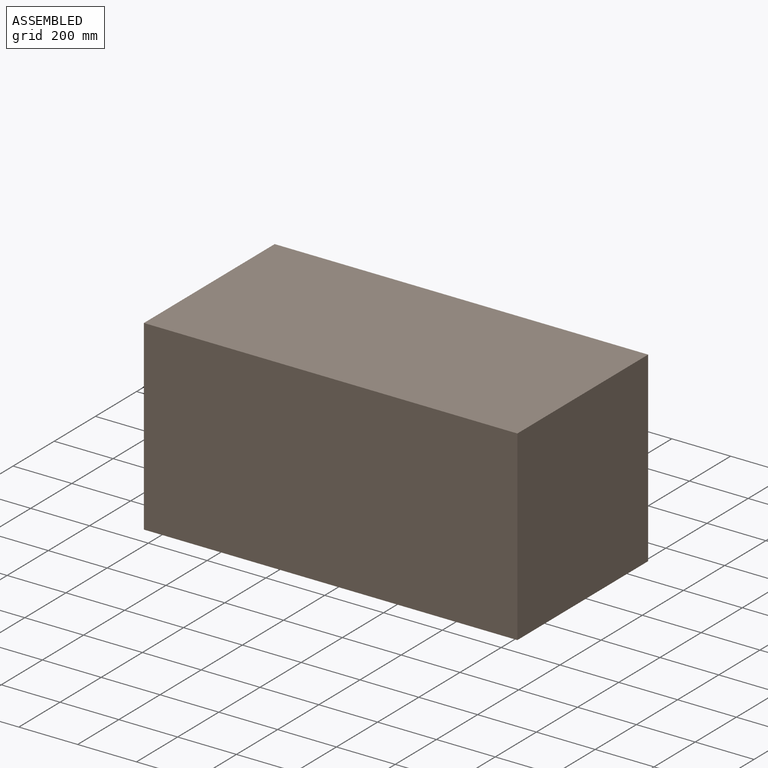
[diagram: assembled view]
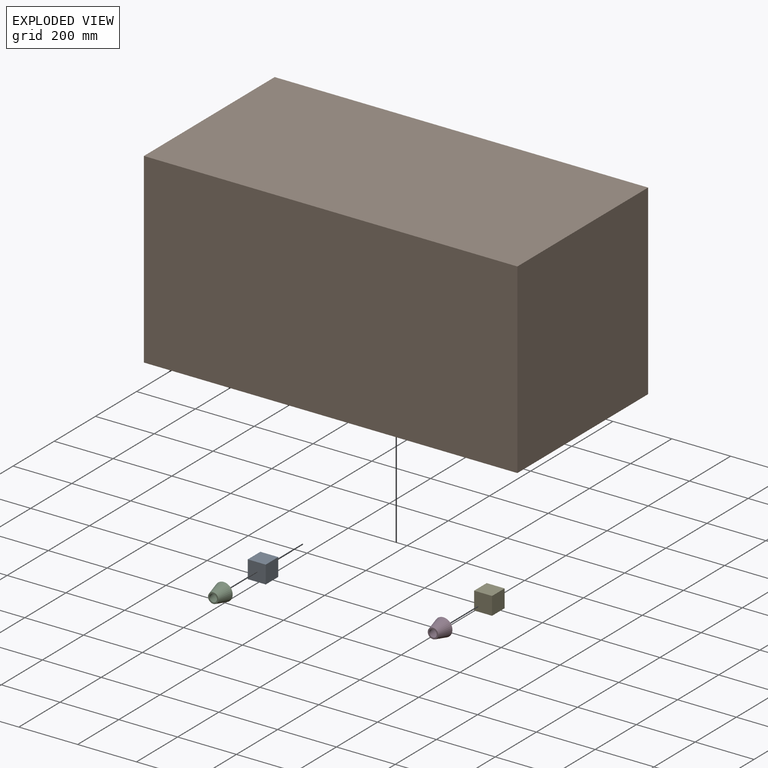
[diagram: exploded view]
GUIDED TOUR — MATED ASSEMBLY (Onshape document 1f2822065768705723c1a2fb, AutoMate assembly 1f2822065768705723c1a2fb_783183ebedd22d866a828e93_8a9afe2ca7e9c026642b0d51_default)

This assembly has 5 components, labeled P0..P4 below (a component is one placed occurrence of a part; the same part can appear more than once), held together by 4 mates. A mate is a constraint between two components; its type names the relative motion it leaves free:
  CYLINDRICAL — leaves both rotation about and translation along the listed axis free,
  PLANAR — leaves sliding in the plane through the listed point (normal = the listed direction) and rotation about that normal free.
Axis/direction vectors are unit vectors and 'through' points are millimeter coordinates, both in the assembly's world frame.

MATES
  1. CYLINDRICAL "Cylindrical 2": P2 <-> P0, axis (0.000, 1.000, 0.000) through (-776.44, -285.53, -358.49) mm
  2. PLANAR "Planar 1": P4 <-> P1, direction (0.000, 0.000, 1.000) through (-141.44, -255.05, -328.01) mm
  3. PLANAR "Planar 2": P0 <-> P1, direction (0.000, 0.000, 1.000) through (-776.44, -255.05, -328.01) mm
  4. CYLINDRICAL "Cylindrical 1": P3 <-> P4, axis (0.000, 1.000, 0.000) through (-141.44, -285.53, -358.49) mm

ASSEMBLY ORDER
  1. P4 — the base component [order verified]
  2. P3 [order verified]
  3. P0 [order verified]
  4. P2 [order verified]
  5. P1 [order verified]
Order-tag legend:
  [order verified] — this step's position reverses a verified removal order: the component was checked to insert without passing through the ones already placed.

Of the 5 components, 5 carry the full construction recipe — the FeatureScript program that regenerates the part's solid from scratch; the rest are supplied as boundary geometry only.
Each toured component is shown spotlighted twice — in the assembled view, then in the exploded view, where a leader line traces a displaced component back to its assembled socket (saturated green if recipe-attached, orange if geometry-only; every other component desaturated gray) — followed by its recipe or geometry summary and the mates that hold it.
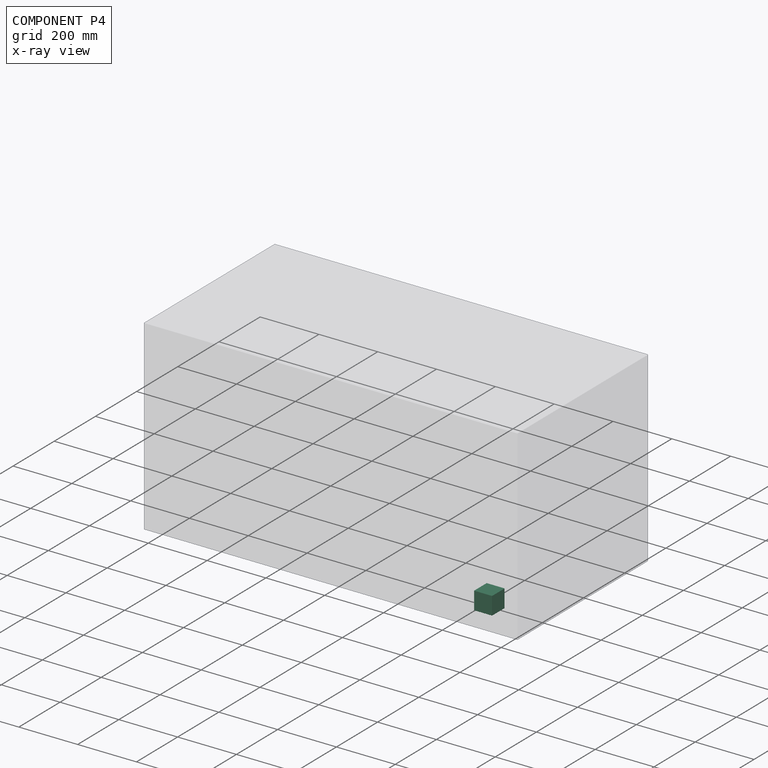
[diagram: component P4 — x-ray view]
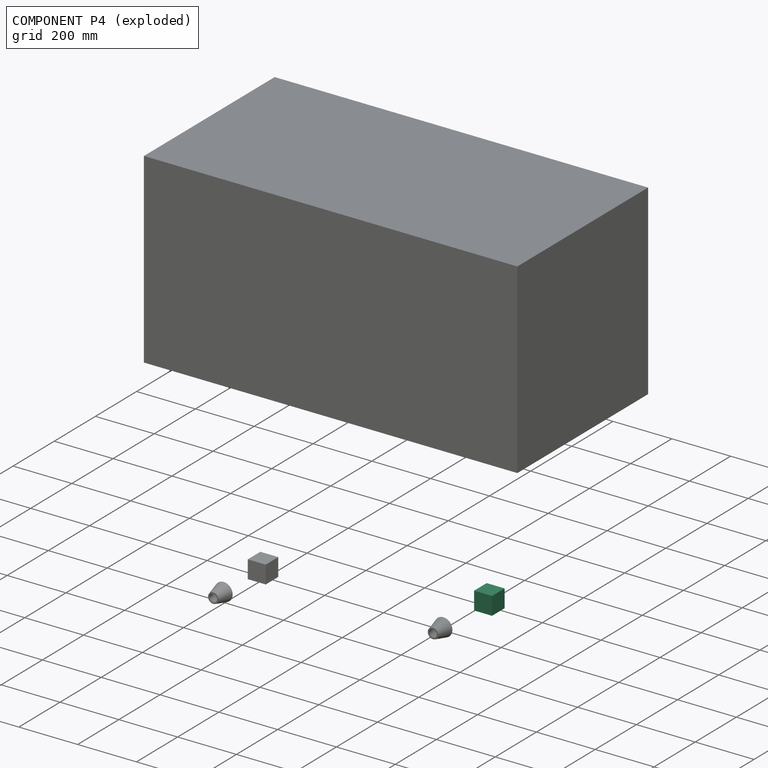
[diagram: component P4 — exploded]
COMPONENT P4 — same part as P0 (CADFS 00249501); its construction recipe is shown at P0.
Held by: PLANAR mate "Planar 1" to P1; CYLINDRICAL mate "Cylindrical 1" to P3.
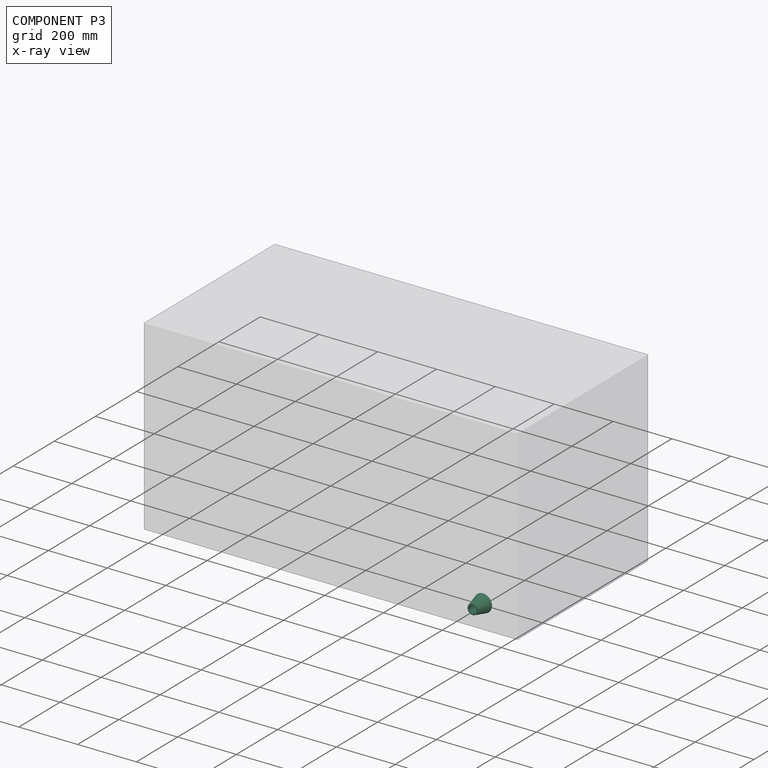
[diagram: component P3 — x-ray view]
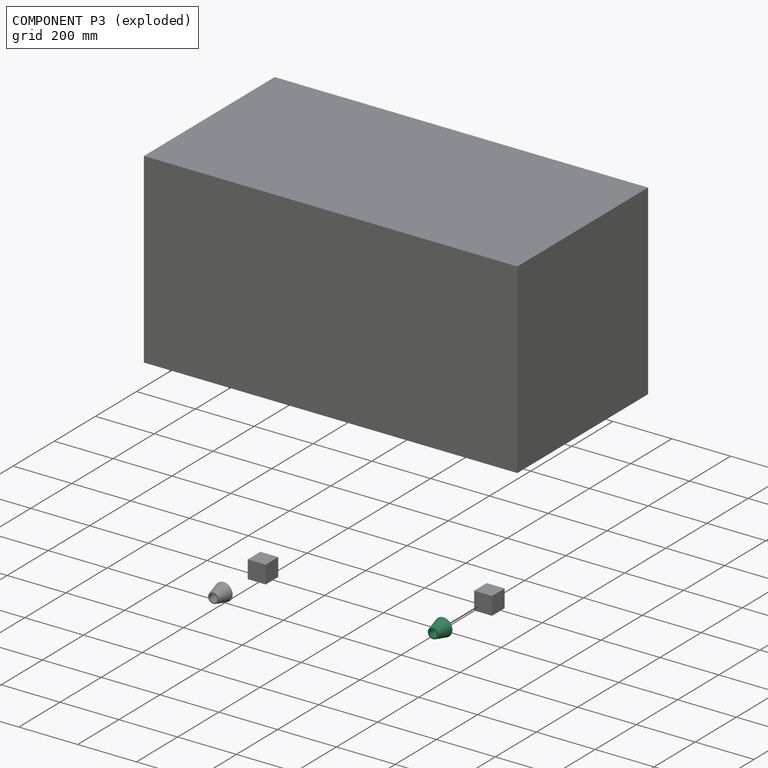
[diagram: component P3 — exploded]
COMPONENT P3 — same part as P2 (CADFS 00249500); its construction recipe is shown at P2.
Held by: CYLINDRICAL mate "Cylindrical 1" to P4.
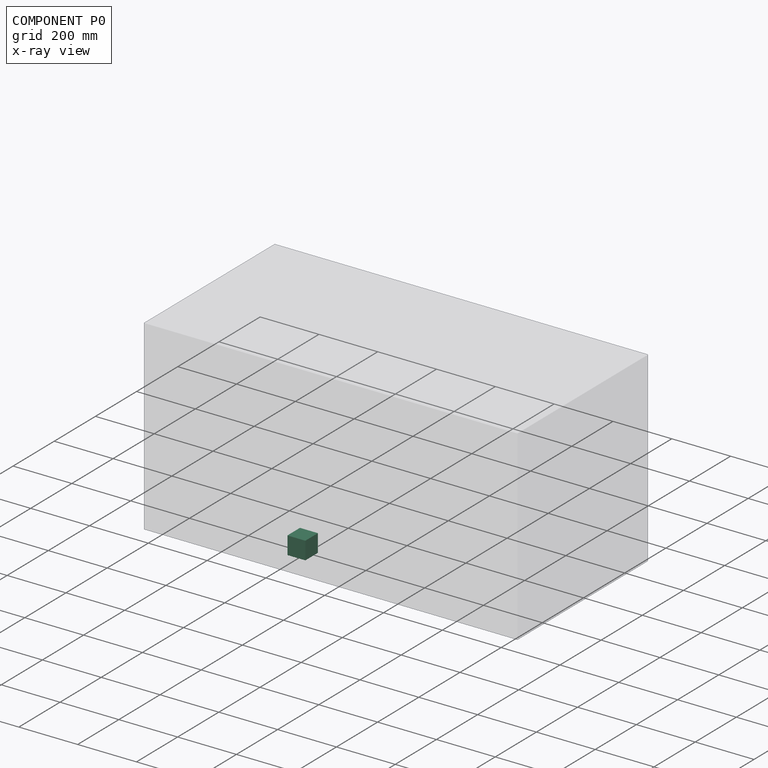
[diagram: component P0 — x-ray view]
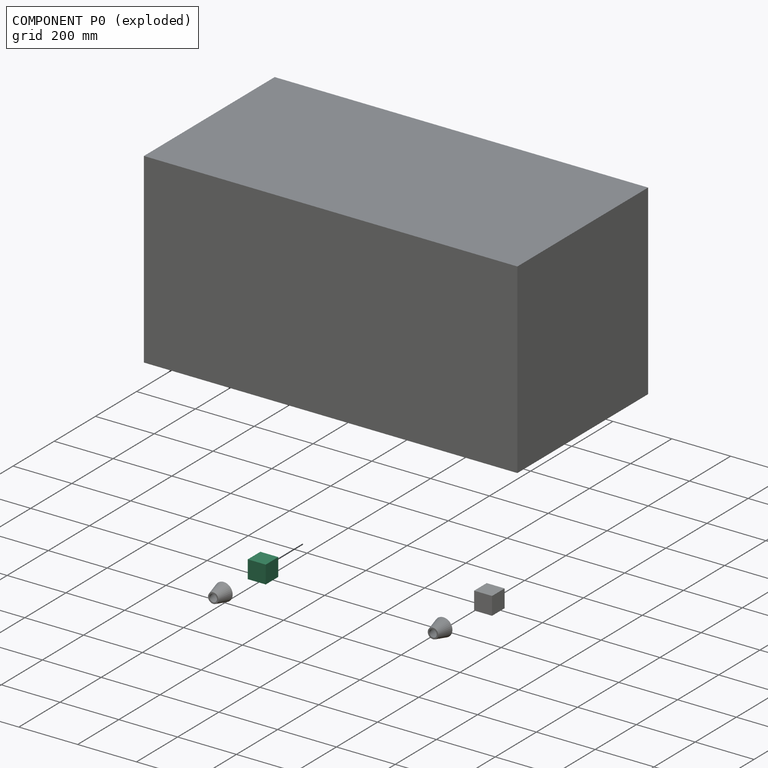
[diagram: component P0 — exploded]
COMPONENT P0 — recipe-attached (CADFS 00249501, mesh-verified: the recipe's output STEP matches this component's geometry to below the mesh-comparison resolution (tessellation chordal tolerance ~0.158 mm)).
Held by: CYLINDRICAL mate "Cylindrical 2" to P2; PLANAR mate "Planar 2" to P1.
Construction recipe (FeatureScript — the CAD program that rebuilds this solid; sketch coordinates are in the units given by the * unit suffixes, e.g. mm):

FeatureScript 1511;
import(path : "onshape/std/geometry.fs", version : "1511.0");
import(path : "onshape/std/common.fs", version : "1511.0");
const mm = millimeter;
const VERTEX = EntityType.VERTEX;
const EDGE = EntityType.EDGE;
const FACE = EntityType.FACE;
const BODY = EntityType.BODY;
function v(x, y){return vector(x, y);}
function OD(order){return orderDisambiguation(order);}
function OSD(set){return originalSetDisambiguation(set);}
function TD(topology){return topologyDisambiguation(topology);}
function TDD(query){return trueDependencyDisambiguation(query);}
function sQuery(a, b, c) {return sketchEntityQuery(a, b, c);}

annotation { "Feature Type Name" : "Feature", "Feature Type Description" : "" }
export const myFeature = defineFeature(function(context is Context, id is Id, definition is map)
    precondition{}
    {
        {
            var Q0;
            Q0=qCreatedBy(makeId("Front.planeOp"),FACE);
            var sketch = newSketch(context, id + "F0", { "sketchPlane" : qUnion([Q0])});
            skLineSegment(sketch, "E0.bottom", {"start": v(30.48, 30.48) * mm, "end": v(-30.48, 30.48) * mm});
            skLineSegment(sketch, "E0.top", {"start": v(30.48, -30.48) * mm, "end": v(-30.48, -30.48) * mm});
            skLineSegment(sketch, "E0.left", {"start": v(30.48, 30.48) * mm, "end": v(30.48, -30.48) * mm});
            skLineSegment(sketch, "E0.right", {"start": v(-30.48, 30.48) * mm, "end": v(-30.48, -30.48) * mm});
            skPoint(sketch, "E0.middle", {"position": v(0, 0) * mm});
            skSolve(sketch);
        }
        {
            var Q0;
            Q0=makeQuery(id+"F0.imprint","IMPRINT",FACE,{"disambiguationData":[TD([[makeQuery(id+"F0.imprint","IMPRINT",EDGE,{"derivedFrom":sQuery(id+"F0.wireOp",EDGE,"E0.bottom")}),1.0]])]});
            extrude(context, id + "F1", {"entities" : qUnion([Q0]), "depth" : 60.96 * mm});
        }
    });
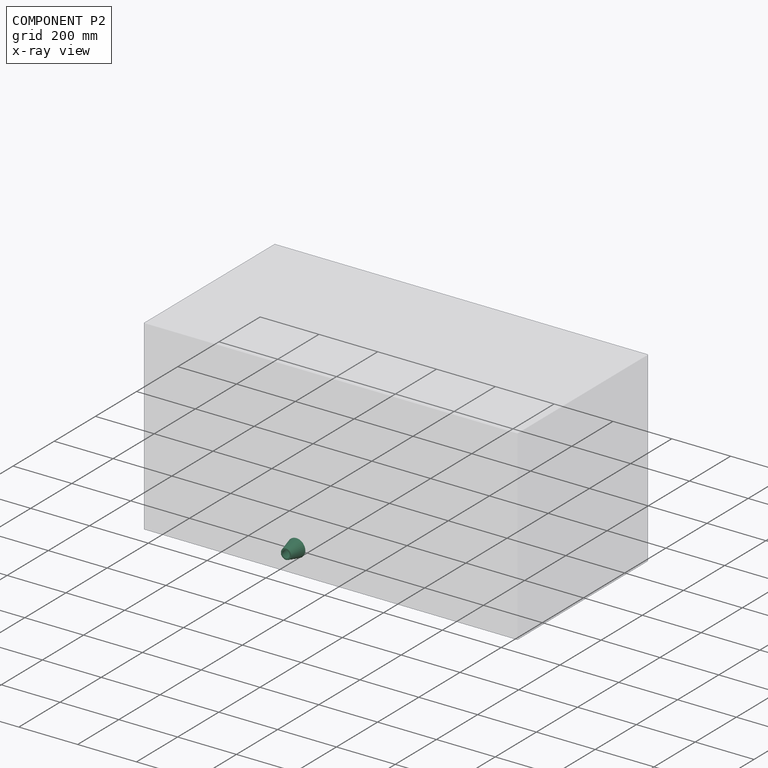
[diagram: component P2 — x-ray view]
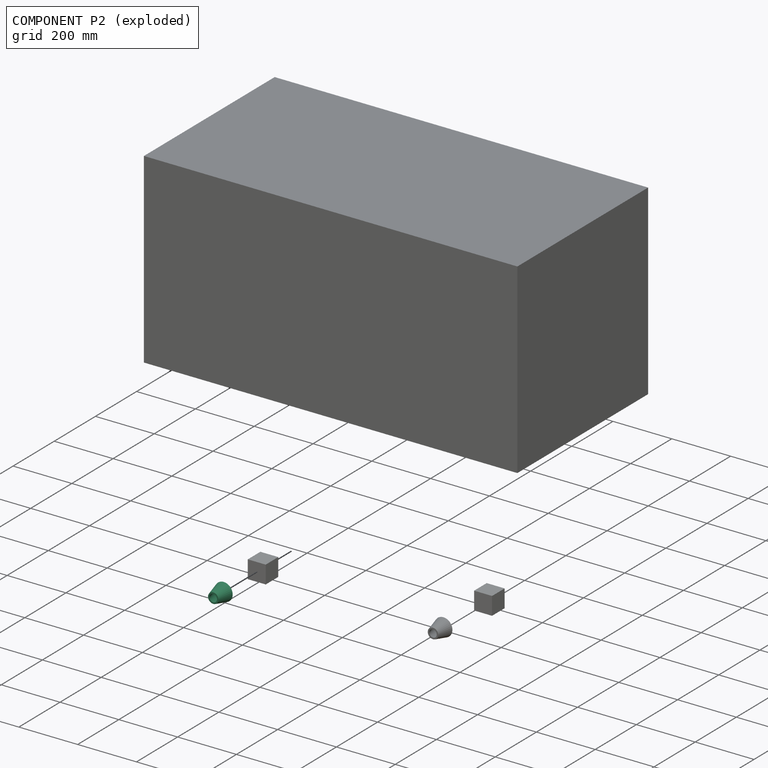
[diagram: component P2 — exploded]
COMPONENT P2 — recipe-attached (CADFS 00249500, mesh-verified: the recipe's output STEP matches this component's geometry to below the mesh-comparison resolution (tessellation chordal tolerance ~0.15 mm)).
Held by: CYLINDRICAL mate "Cylindrical 2" to P0.
Construction recipe (FeatureScript — the CAD program that rebuilds this solid; sketch coordinates are in the units given by the * unit suffixes, e.g. mm):

FeatureScript 1511;
import(path : "onshape/std/geometry.fs", version : "1511.0");
import(path : "onshape/std/common.fs", version : "1511.0");
const mm = millimeter;
const VERTEX = EntityType.VERTEX;
const EDGE = EntityType.EDGE;
const FACE = EntityType.FACE;
const BODY = EntityType.BODY;
function v(x, y){return vector(x, y);}
function OD(order){return orderDisambiguation(order);}
function OSD(set){return originalSetDisambiguation(set);}
function TD(topology){return topologyDisambiguation(topology);}
function TDD(query){return trueDependencyDisambiguation(query);}
function sQuery(a, b, c) {return sketchEntityQuery(a, b, c);}

annotation { "Feature Type Name" : "Feature", "Feature Type Description" : "" }
export const myFeature = defineFeature(function(context is Context, id is Id, definition is map)
    precondition{}
    {
        {
            var Q0;
            Q0=qCreatedBy(makeId("Front.planeOp"),FACE);
            var sketch = newSketch(context, id + "F0", { "sketchPlane" : qUnion([Q0])});
            skLineSegment(sketch, "E0", {"start": v(0, 25.4) * mm, "end": v(0, -25.4) * mm, "construction": true});
            skLineSegment(sketch, "E1", {"start": v(0, 25.4) * mm, "end": v(25.4, 25.4) * mm, "construction": true});
            skLineSegment(sketch, "E2", {"start": v(0, -25.4) * mm, "end": v(12.7, -25.4) * mm, "construction": true});
            skLineSegment(sketch, "E3", {"start": v(25.4, 25.4) * mm, "end": v(12.7, -25.4) * mm});
            skLineSegment(sketch, "E4", {"start": v(25.4, 25.4) * mm, "end": v(30.48, 25.4) * mm});
            skLineSegment(sketch, "E5", {"start": v(12.7, -25.4) * mm, "end": v(17.78, -25.4) * mm});
            skLineSegment(sketch, "E6", {"start": v(30.48, 25.4) * mm, "end": v(17.78, -25.4) * mm});
            skSolve(sketch);
        }
        {
            var Q0;
            Q0=makeQuery(id+"F0.imprint","IMPRINT",FACE,{"disambiguationData":[TD([[makeQuery(id+"F0.imprint","IMPRINT",EDGE,{"derivedFrom":sQuery(id+"F0.wireOp",EDGE,"E3")}),1.0]])]});
            var Q1;
            Q1=sQuery(id+"F0.wireOp",EDGE,"E0");
            revolve(context, id + "F1", {"entities" : qUnion([Q0]), "axis" : qUnion([Q1]), "revolveType" : RevolveType.FULL});
        }
    });
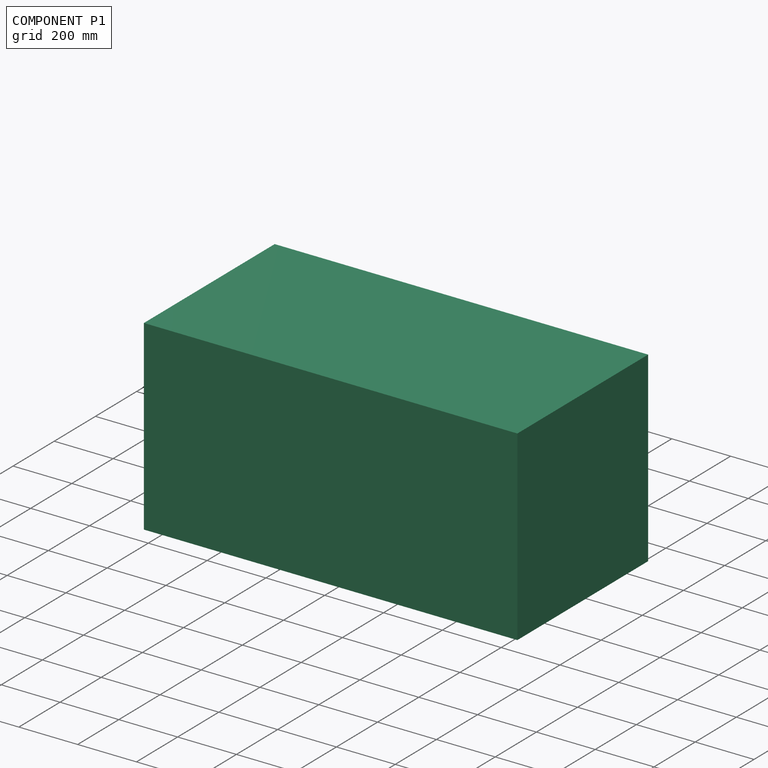
[diagram: component P1 — assembled]
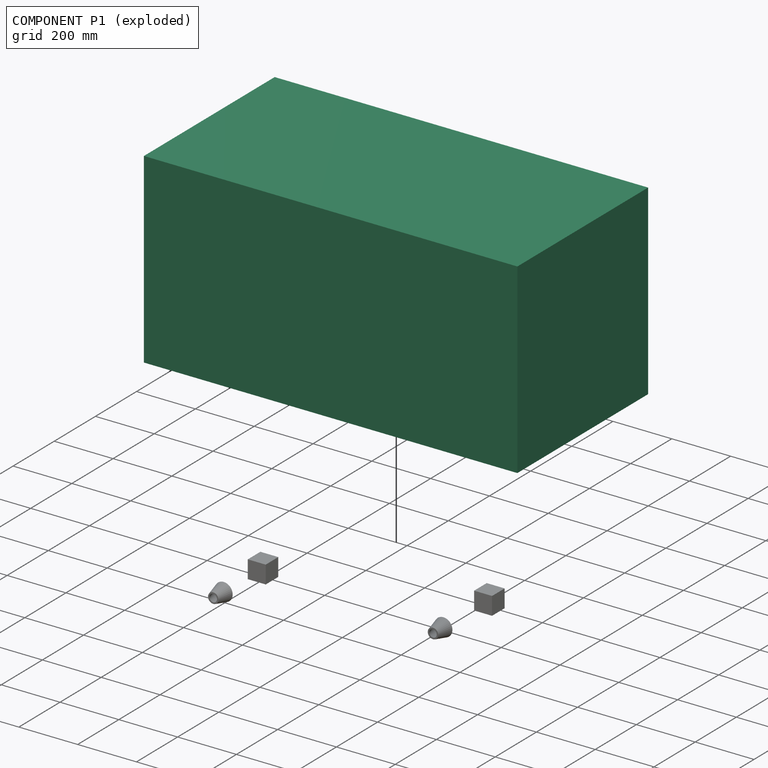
[diagram: component P1 — exploded]
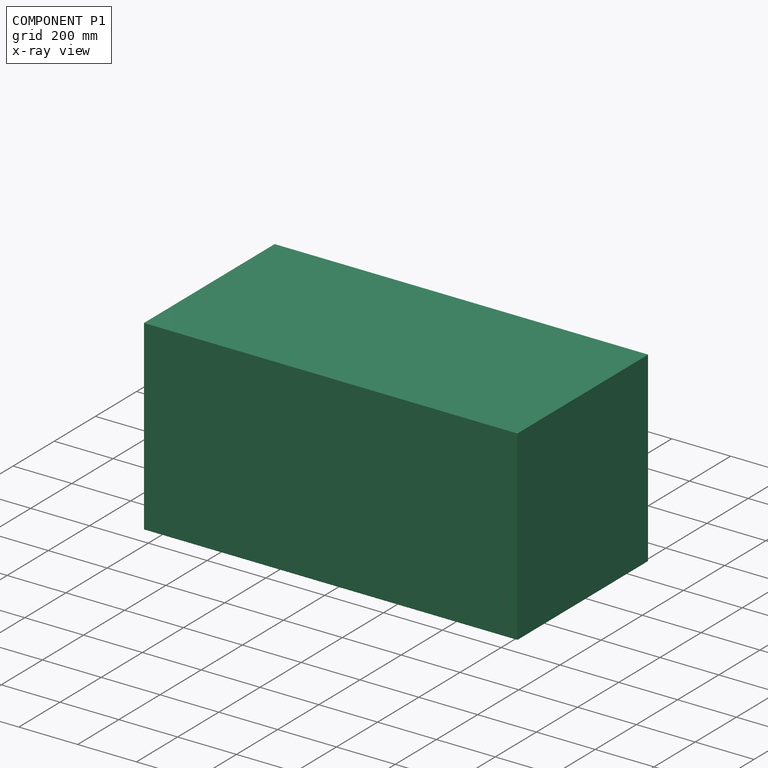
[diagram: component P1 — x-ray view]
COMPONENT P1 — recipe-attached (CADFS 00249502, mesh-verified: the recipe's output STEP matches this component's geometry to below the mesh-comparison resolution (tessellation chordal tolerance ~2.37 mm)).
Held by: PLANAR mate "Planar 1" to P4; PLANAR mate "Planar 2" to P0.
Construction recipe (FeatureScript — the CAD program that rebuilds this solid; sketch coordinates are in the units given by the * unit suffixes, e.g. mm):

FeatureScript 1511;
import(path : "onshape/std/geometry.fs", version : "1511.0");
import(path : "onshape/std/common.fs", version : "1511.0");
const mm = millimeter;
const VERTEX = EntityType.VERTEX;
const EDGE = EntityType.EDGE;
const FACE = EntityType.FACE;
const BODY = EntityType.BODY;
function v(x, y){return vector(x, y);}
function OD(order){return orderDisambiguation(order);}
function OSD(set){return originalSetDisambiguation(set);}
function TD(topology){return topologyDisambiguation(topology);}
function TDD(query){return trueDependencyDisambiguation(query);}
function sQuery(a, b, c) {return sketchEntityQuery(a, b, c);}

annotation { "Feature Type Name" : "Feature", "Feature Type Description" : "" }
export const myFeature = defineFeature(function(context is Context, id is Id, definition is map)
    precondition{}
    {
        {
            var Q0;
            Q0=qCreatedBy(makeId("Front.planeOp"),FACE);
            var sketch = newSketch(context, id + "F0", { "sketchPlane" : qUnion([Q0])});
            skLineSegment(sketch, "E0.bottom", {"start": v(635, 317.5) * mm, "end": v(-635, 317.5) * mm});
            skLineSegment(sketch, "E0.top", {"start": v(635, -317.5) * mm, "end": v(-635, -317.5) * mm});
            skLineSegment(sketch, "E0.left", {"start": v(635, 317.5) * mm, "end": v(635, -317.5) * mm});
            skLineSegment(sketch, "E0.right", {"start": v(-635, 317.5) * mm, "end": v(-635, -317.5) * mm});
            skPoint(sketch, "E0.middle", {"position": v(0, 0) * mm});
            skLineSegment(sketch, "E1.bottom", {"start": v(609.6, 304.8) * mm, "end": v(-609.6, 304.8) * mm});
            skLineSegment(sketch, "E1.top", {"start": v(609.6, -304.8) * mm, "end": v(-609.6, -304.8) * mm});
            skLineSegment(sketch, "E1.left", {"start": v(609.6, 304.8) * mm, "end": v(609.6, -304.8) * mm});
            skLineSegment(sketch, "E1.right", {"start": v(-609.6, 304.8) * mm, "end": v(-609.6, -304.8) * mm});
            skSolve(sketch);
        }
        {
            var Q0;
            Q0=makeQuery(id+"F0.imprint","IMPRINT",FACE,{"disambiguationData":[TD([[makeQuery(id+"F0.imprint","IMPRINT",EDGE,{"derivedFrom":sQuery(id+"F0.wireOp",EDGE,"E0.bottom")}),1.0]])]});
            var Q1;
            Q1=makeQuery(id+"F0.imprint","IMPRINT",FACE,{"disambiguationData":[TD([[makeQuery(id+"F0.imprint","IMPRINT",EDGE,{"derivedFrom":sQuery(id+"F0.wireOp",EDGE,"E1.bottom")}),1.0]])]});
            extrude(context, id + "F1", {"entities" : qUnion([Q0, Q1]), "depth" : 635 * mm});
        }
        {
            var Q0;
            Q0=makeQuery(id+"F0.imprint","IMPRINT",FACE,{"disambiguationData":[TD([[makeQuery(id+"F0.imprint","IMPRINT",EDGE,{"derivedFrom":sQuery(id+"F0.wireOp",EDGE,"E1.bottom")}),1.0]])]});
            extrude(context, id + "F2", {"entities" : qUnion([Q0]), "operationType" : NewBodyOperationType.REMOVE, "depth" : 609.6 * mm});
        }
        {
            var Q0;
            Q0=makeQuery(id+"F1.opExtrude","SWEPT_FACE",FACE,{"disambiguationData":[OSD([sQuery(id+"F0.wireOp",EDGE,"E0.top")])]});
            var sketch = newSketch(context, id + "F3", { "sketchPlane" : qUnion([Q0])});
            skLineSegment(sketch, "E2", {"start": v(0, 0) * mm, "end": v(0, 635) * mm, "construction": true});
            skLineSegment(sketch, "E3.bottom", {"start": v(635, 635) * mm, "end": v(317.5, 635) * mm, "construction": true});
            skLineSegment(sketch, "E3.top", {"start": v(635, 317.5) * mm, "end": v(317.5, 317.5) * mm, "construction": true});
            skLineSegment(sketch, "E3.left", {"start": v(635, 635) * mm, "end": v(635, 317.5) * mm, "construction": true});
            skLineSegment(sketch, "E3.right", {"start": v(317.5, 635) * mm, "end": v(317.5, 317.5) * mm, "construction": true});
            skLineSegment(sketch, "E4.bottom", {"start": v(-635, 635) * mm, "end": v(-317.5, 635) * mm, "construction": true});
            skLineSegment(sketch, "E4.top", {"start": v(-635, 317.5) * mm, "end": v(-317.5, 317.5) * mm, "construction": true});
            skLineSegment(sketch, "E4.left", {"start": v(-635, 635) * mm, "end": v(-635, 317.5) * mm, "construction": true});
            skLineSegment(sketch, "E4.right", {"start": v(-317.5, 635) * mm, "end": v(-317.5, 317.5) * mm, "construction": true});
            skCircle(sketch, "E5", {"center": v(317.5, 317.5) * mm, "radius": 25.4 * mm});
            skCircle(sketch, "E6", {"center": v(317.5, 317.5) * mm, "radius": 12.7 * mm});
            skCircle(sketch, "E7", {"center": v(-317.5, 317.5) * mm, "radius": 12.7 * mm});
            skCircle(sketch, "E8", {"center": v(-317.5, 317.5) * mm, "radius": 25.4 * mm});
            skSolve(sketch);
        }
        {
            var Q0;
            Q0=makeQuery(id+"F3.imprint","IMPRINT",FACE,{"disambiguationData":[TD([[makeQuery(id+"F3.imprint","IMPRINT",EDGE,{"derivedFrom":sQuery(id+"F3.wireOp",EDGE,"E5")}),1.0]])]});
            var Q1;
            Q1=makeQuery(id+"F3.imprint","IMPRINT",FACE,{"disambiguationData":[TD([[makeQuery(id+"F3.imprint","IMPRINT",EDGE,{"derivedFrom":sQuery(id+"F3.wireOp",EDGE,"E7")}),-1.0]])]});
            extrude(context, id + "F4", {"entities" : qUnion([Q0, Q1]), "operationType" : NewBodyOperationType.ADD, "depth" : 50.8 * mm});
        }
    });
PROVENANCE & LICENSES
Assembly (occurrences, transforms, mates, per-part STEP geometry): AutoMate dataset, Zenodo record 7776208, CC0.
Construction recipes: CADFS (HuggingFace VladPyatov/CADFS, CC-BY-4.0, layered over the ABC dataset), FeatureScript reconstruction programs keyed by ABC model id.
Join: ABC meta listings map ABC model id -> Onshape documentId; within a shared document, parts are matched by geometric signature (bounding-box dims + volume at 0.1% relative tolerance, exact B-rep face/solid counts).
Verification: 5 of this assembly's 5 components carry a recipe attachment, and every attachment is mesh-verified: the CADFS STEP and the AutoMate member STEP were compared as meshes in their shared local frame (symmetric sampled-point-to-mesh distance); worst across the 5 attachments: below the mesh-comparison resolution (tessellation chordal tolerance ~2.37 mm) on a 1577 mm part.
Renders: orthographic iso camera (az 35 / el 25); the floor grid conveys scale (grid pitch printed in each image; no ruler). In the exploded view each component is displaced by its stored offset vector: the offsets alone carry the explosion direction (mate normal/axis signs are not orientation cues and do not encode it), and separation distances are assigned per mate-chain, not proportionally to assembly-order depth.
